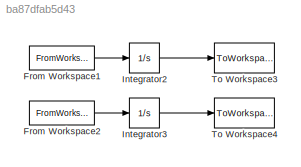
MODEL slx_ba87dfab5d43
KIND model
CONFIG AbsTol = auto
CONFIG FixedStep = auto
CONFIG MaxStep = auto
CONFIG MinStep = auto
CONFIG RelTol = 1e-3
CONFIG SampleTimeConstraint = Unconstrained
CONFIG Solver = VariableStepAuto
CONFIG SolverMode = Auto
CONFIG SolverName = VariableStepAuto
CONFIG StartTime = 0.0
CONFIG StopTime = 10.0
BLOCK [FromWorkspace] From Workspace1
  SampleTime = dt
  VariableName = [t U_E]
  ZeroCross = on
BLOCK [FromWorkspace] From Workspace2
  SampleTime = dt
  VariableName = [t W_E]
  ZeroCross = on
BLOCK [Integrator] Integrator2
  Ports = [1, 1]
BLOCK [Integrator] Integrator3
  Ports = [1, 1]
BLOCK [ToWorkspace] To Workspace3
  FixptAsFi = on
  MaxDataPoints = inf
  Ports = [1]
  SampleTime = dt
  Save2DSignal = 3-D array (concatenate along third dimension)
  VariableName = X_E
BLOCK [ToWorkspace] To Workspace4
  FixptAsFi = on
  MaxDataPoints = inf
  Ports = [1]
  SampleTime = dt
  Save2DSignal = 3-D array (concatenate along third dimension)
  VariableName = Z_E
LINE From Workspace1:1 -> Integrator2:1
LINE From Workspace2:1 -> Integrator3:1
LINE Integrator2:1 -> To Workspace3:1
LINE Integrator3:1 -> To Workspace4:1
